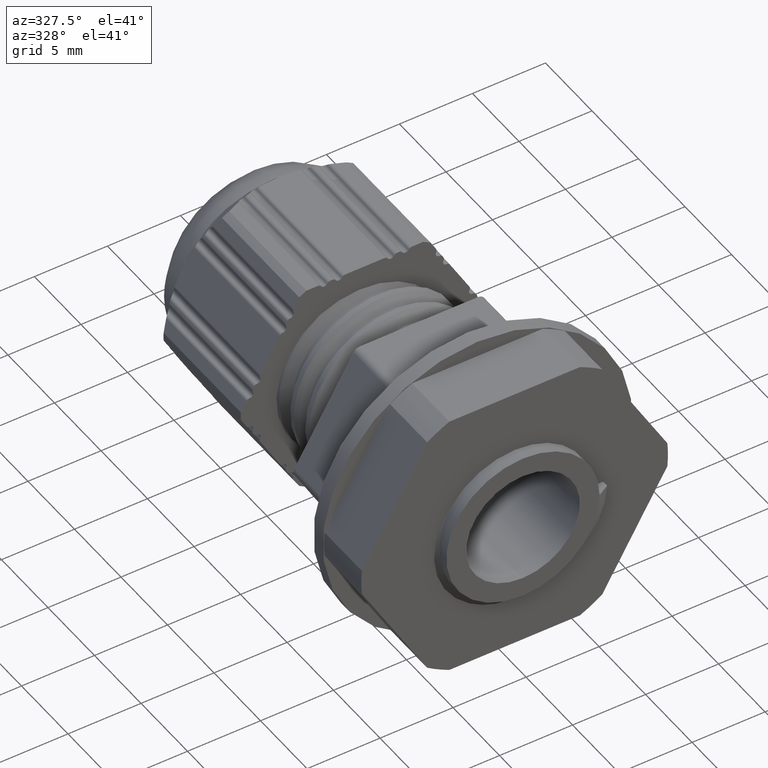
[diagram: clean part render]
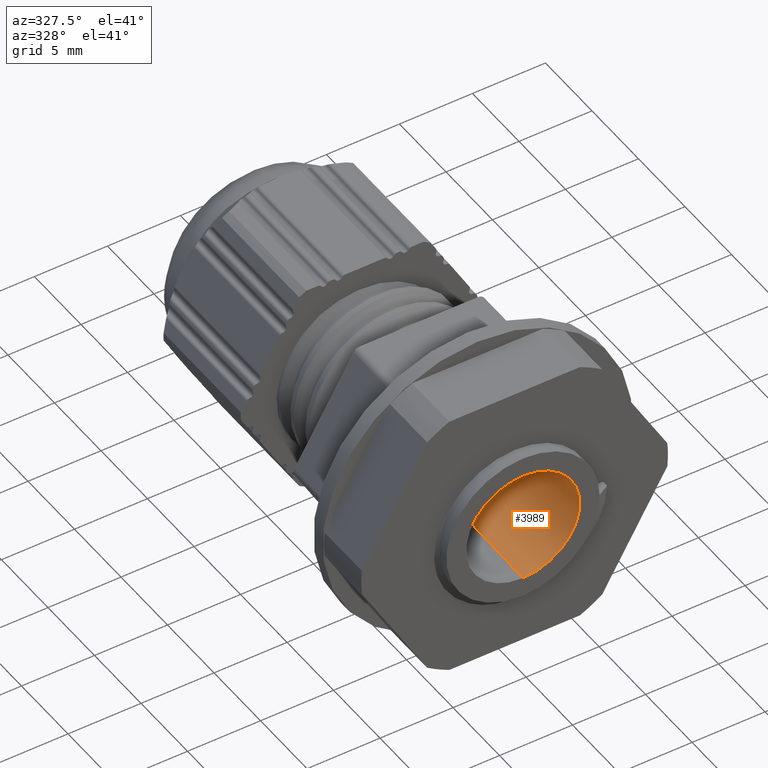
[diagram: same view with one face highlighted and labeled with its STEP entity id]
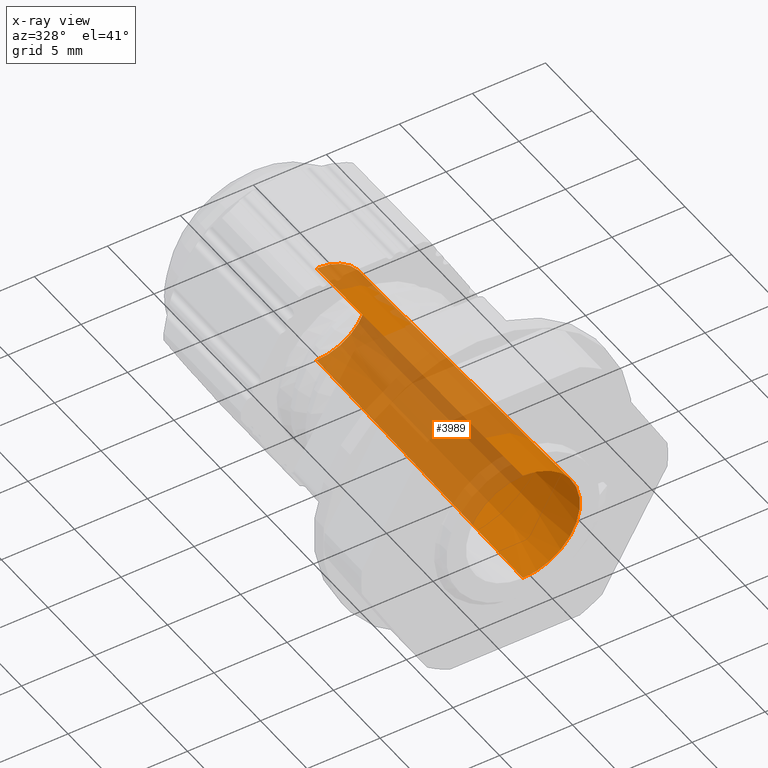
[diagram: x-ray of the same camera — body ghosted, the highlighted face saturated]
A machine part, auxiliary view. The second image highlights one B-rep face of the part: STEP entity #3989.
The next image is the same camera in x-ray: the body ghosted, the highlighted face saturated — about 66% of this face is hidden behind the body in this view.
In plain terms, the highlighted conical surface has half-angle 1 deg.
Its self-contained STEP definition (entity closure, byte-faithful):
#102 = CIRCLE ( 'NONE', #106, 3.512492053956537400 ) ;
#106 = AXIS2_PLACEMENT_3D ( 'NONE', #10922, #10899, #10913 ) ;
#199 = VECTOR ( 'NONE', #6298, 1000.000000000000000 ) ;
#256 = VECTOR ( 'NONE', #5688, 1000.000000000000000 ) ;
#808 = AXIS2_PLACEMENT_3D ( 'NONE', #8186, #8196, #8242 ) ;
#822 = CIRCLE ( 'NONE', #808, 3.900000000002561000 ) ;
#935 = EDGE_LOOP ( 'NONE', ( #4299, #4269, #4287, #4313 ) ) ;
#2831 = CARTESIAN_POINT ( 'NONE',  ( -2.014795781349690400E-015, 7.533721623985910800, 3.512492053956532500 ) ) ;
#2840 = CARTESIAN_POINT ( 'NONE',  ( 1.264161588295496400E-026, -14.66659373653556200, -3.900000000002561000 ) ) ;
#2843 = CARTESIAN_POINT ( 'NONE',  ( 4.776122516804233900E-016, -14.66659373653556000, 3.900000000002561000 ) ) ;
#2875 = CARTESIAN_POINT ( 'NONE',  ( -4.937360029470643000E-015, 7.533721623985909100, -3.512492053956542300 ) ) ;
#3143 = EDGE_CURVE ( 'NONE', #10041, #10033, #6312, .T. ) ;
#3155 = EDGE_CURVE ( 'NONE', #10039, #10044, #5675, .T. ) ;
#3732 = EDGE_CURVE ( 'NONE', #10044, #10033, #822, .T. ) ;
#3771 = EDGE_CURVE ( 'NONE', #10041, #10039, #102, .T. ) ;
#3989 = ADVANCED_FACE ( 'NONE', ( #7384 ), #4871, .F. ) ;
#4269 = ORIENTED_EDGE ( 'NONE', *, *, #3771, .F. ) ;
#4287 = ORIENTED_EDGE ( 'NONE', *, *, #3143, .T. ) ;
#4299 = ORIENTED_EDGE ( 'NONE', *, *, #3155, .F. ) ;
#4313 = ORIENTED_EDGE ( 'NONE', *, *, #3732, .F. ) ;
#4871 = CONICAL_SURFACE ( 'NONE', #4882, 3.900000000001568900, 0.01745329251999801600 ) ;
#4882 = AXIS2_PLACEMENT_3D ( 'NONE', #7406, #7412, #7402 ) ;
#5662 = CARTESIAN_POINT ( 'NONE',  ( 4.776122516676601100E-016, -14.66659373647871700, 3.900000000001568900 ) ) ;
#5675 = LINE ( 'NONE', #5662, #256 ) ;
#5688 = DIRECTION ( 'NONE',  ( 2.245038763409616200E-016, -0.9998476951563902700, 0.01745240643733844700 ) ) ;
#6298 = DIRECTION ( 'NONE',  ( 2.223665729728711100E-016, -0.9998476951563902700, -0.01745240643733800300 ) ) ;
#6312 = LINE ( 'NONE', #6318, #199 ) ;
#6318 = CARTESIAN_POINT ( 'NONE',  ( 1.929016370579388800E-031, -14.66659373647872000, -3.900000000001568900 ) ) ;
#7384 = FACE_OUTER_BOUND ( 'NONE', #935, .T. ) ;
#7402 = DIRECTION ( 'NONE',  ( 0.0000000000000000000, -4.448008912759254100E-016, -1.000000000000000000 ) ) ;
#7406 = CARTESIAN_POINT ( 'NONE',  ( 1.929016370579388800E-031, -14.66659373647871900, 1.929016370579388800E-031 ) ) ;
#7412 = DIRECTION ( 'NONE',  ( 2.224004456379627500E-016, -1.000000000000000000, 2.224004456379627500E-016 ) ) ;
#8186 = CARTESIAN_POINT ( 'NONE',  ( 1.264161588295496400E-026, -14.66659373653556000, 1.264161588295496400E-026 ) ) ;
#8196 = DIRECTION ( 'NONE',  ( -2.224004456379627500E-016, 1.000000000000000000, -2.224004456379627500E-016 ) ) ;
#8242 = DIRECTION ( 'NONE',  ( 0.0000000000000000000, -4.448008912758123000E-016, -1.000000000000000000 ) ) ;
#10033 = VERTEX_POINT ( 'NONE', #2840 ) ;
#10039 = VERTEX_POINT ( 'NONE', #2831 ) ;
#10041 = VERTEX_POINT ( 'NONE', #2875 ) ;
#10044 = VERTEX_POINT ( 'NONE', #2843 ) ;
#10899 = DIRECTION ( 'NONE',  ( 2.224004456379627500E-016, -1.000000000000000000, 2.224004456379627500E-016 ) ) ;
#10913 = DIRECTION ( 'NONE',  ( 0.0000000000000000000, -2.469362847415956000E-016, -1.000000000000000000 ) ) ;
#10922 = CARTESIAN_POINT ( 'NONE',  ( -4.937360029470643000E-015, 7.533721623985909900, -4.937360029470643000E-015 ) ) ;